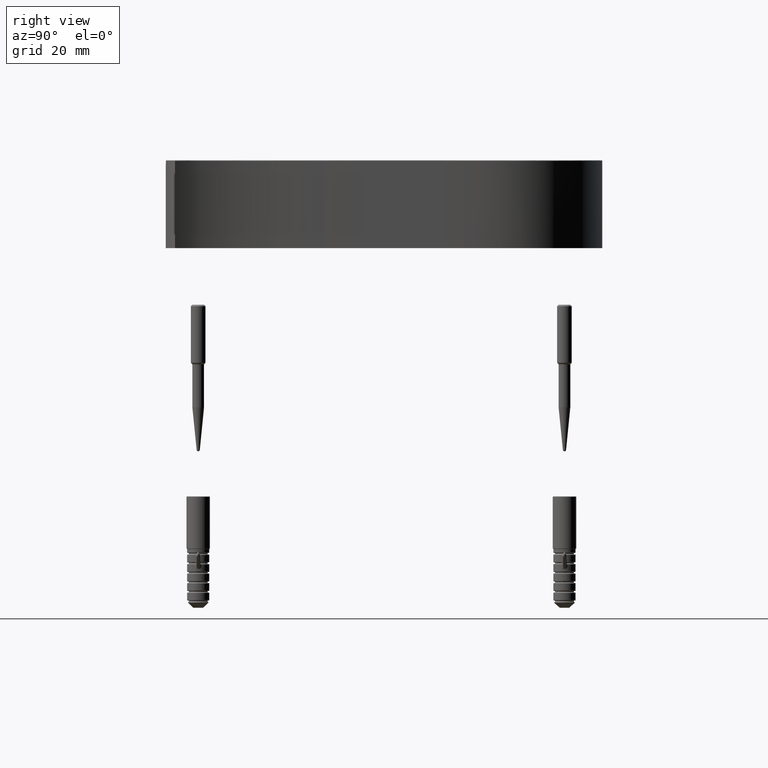
[diagram: clean part render]
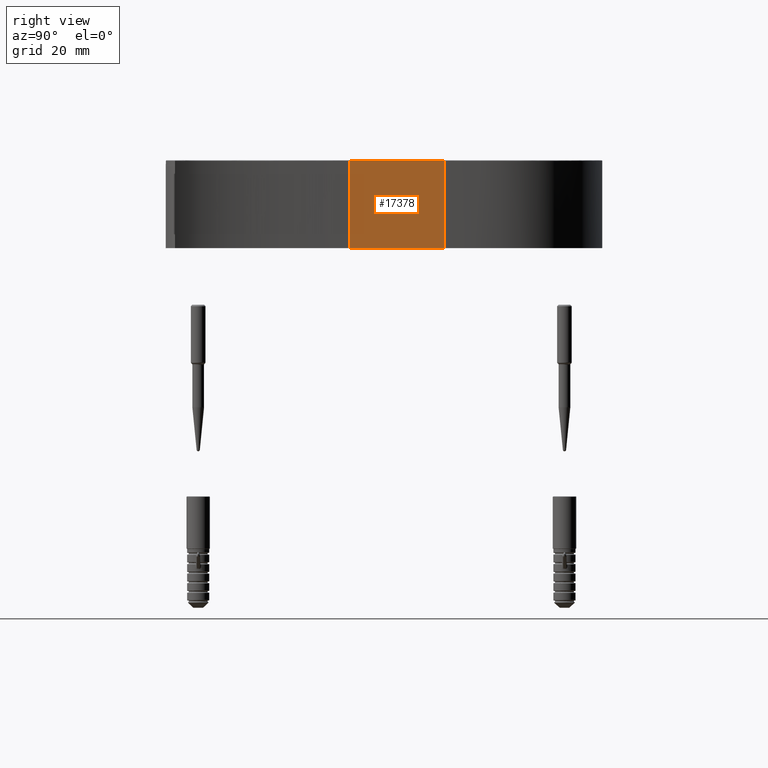
[diagram: same view with one face highlighted and labeled with its STEP entity id]
A machine part, right view. The second image highlights one B-rep face of the part: STEP entity #17378.
In plain terms, the highlighted planar face has unit normal (1, 0, 0).
Its self-contained STEP definition (entity closure, byte-faithful):
#471 = DIRECTION ( 'NONE',  ( -0.0000000000000000000, -0.0000000000000000000, -1.000000000000000000 ) ) ;
#2011 = PLANE ( 'NONE',  #8989 ) ;
#2597 = ORIENTED_EDGE ( 'NONE', *, *, #19584, .F. ) ;
#2967 = CARTESIAN_POINT ( 'NONE',  ( 74.12605448390391400, 95.02982107355869300, 1.750000000000000000 ) ) ;
#3123 = CARTESIAN_POINT ( 'NONE',  ( 74.12605448390391400, 62.82306163021865300, -28.00000000000000000 ) ) ;
#3848 = EDGE_CURVE ( 'NONE', #15819, #28304, #25178, .T. ) ;
#6062 = CARTESIAN_POINT ( 'NONE',  ( 74.12605448390391400, 0.0000000000000000000, -28.00000000000000000 ) ) ;
#8825 = EDGE_CURVE ( 'NONE', #28304, #29815, #29801, .T. ) ;
#8989 = AXIS2_PLACEMENT_3D ( 'NONE', #25350, #16065, #23059 ) ;
#9058 = CARTESIAN_POINT ( 'NONE',  ( 74.12605448390391400, 0.0000000000000000000, 1.750000000000000000 ) ) ;
#12527 = EDGE_CURVE ( 'NONE', #18326, #29815, #23378, .T. ) ;
#12807 = ORIENTED_EDGE ( 'NONE', *, *, #3848, .T. ) ;
#12914 = EDGE_LOOP ( 'NONE', ( #2597, #12807, #15616, #15999 ) ) ;
#13157 = DIRECTION ( 'NONE',  ( 0.0000000000000000000, -1.000000000000000000, 0.0000000000000000000 ) ) ;
#15616 = ORIENTED_EDGE ( 'NONE', *, *, #8825, .T. ) ;
#15819 = VERTEX_POINT ( 'NONE', #2967 ) ;
#15999 = ORIENTED_EDGE ( 'NONE', *, *, #12527, .F. ) ;
#16005 = FACE_OUTER_BOUND ( 'NONE', #12914, .T. ) ;
#16065 = DIRECTION ( 'NONE',  ( 1.000000000000000000, 0.0000000000000000000, -0.0000000000000000000 ) ) ;
#17378 = ADVANCED_FACE ( 'NONE', ( #16005 ), #2011, .T. ) ;
#17721 = CARTESIAN_POINT ( 'NONE',  ( 74.12605448390391400, 95.02982107355869300, 2.000000000000000000 ) ) ;
#18291 = CARTESIAN_POINT ( 'NONE',  ( 74.12605448390391400, 95.02982107355869300, -28.00000000000000000 ) ) ;
#18326 = VERTEX_POINT ( 'NONE', #18291 ) ;
#19584 = EDGE_CURVE ( 'NONE', #15819, #18326, #21398, .T. ) ;
#21398 = LINE ( 'NONE', #17721, #22883 ) ;
#21587 = CARTESIAN_POINT ( 'NONE',  ( 74.12605448390391400, 62.82306163021865300, 2.000000000000000000 ) ) ;
#22883 = VECTOR ( 'NONE', #26996, 1000.000000000000000 ) ;
#23059 = DIRECTION ( 'NONE',  ( -0.0000000000000000000, 0.0000000000000000000, -1.000000000000000000 ) ) ;
#23378 = LINE ( 'NONE', #6062, #29685 ) ;
#23479 = VECTOR ( 'NONE', #471, 1000.000000000000000 ) ;
#25178 = LINE ( 'NONE', #9058, #29975 ) ;
#25350 = CARTESIAN_POINT ( 'NONE',  ( 74.12605448390391400, 0.0000000000000000000, 2.000000000000000000 ) ) ;
#26996 = DIRECTION ( 'NONE',  ( -0.0000000000000000000, -0.0000000000000000000, -1.000000000000000000 ) ) ;
#27880 = DIRECTION ( 'NONE',  ( 0.0000000000000000000, -1.000000000000000000, 0.0000000000000000000 ) ) ;
#28004 = CARTESIAN_POINT ( 'NONE',  ( 74.12605448390391400, 62.82306163021865300, 1.750000000000000000 ) ) ;
#28304 = VERTEX_POINT ( 'NONE', #28004 ) ;
#29685 = VECTOR ( 'NONE', #13157, 1000.000000000000000 ) ;
#29801 = LINE ( 'NONE', #21587, #23479 ) ;
#29815 = VERTEX_POINT ( 'NONE', #3123 ) ;
#29975 = VECTOR ( 'NONE', #27880, 1000.000000000000000 ) ;